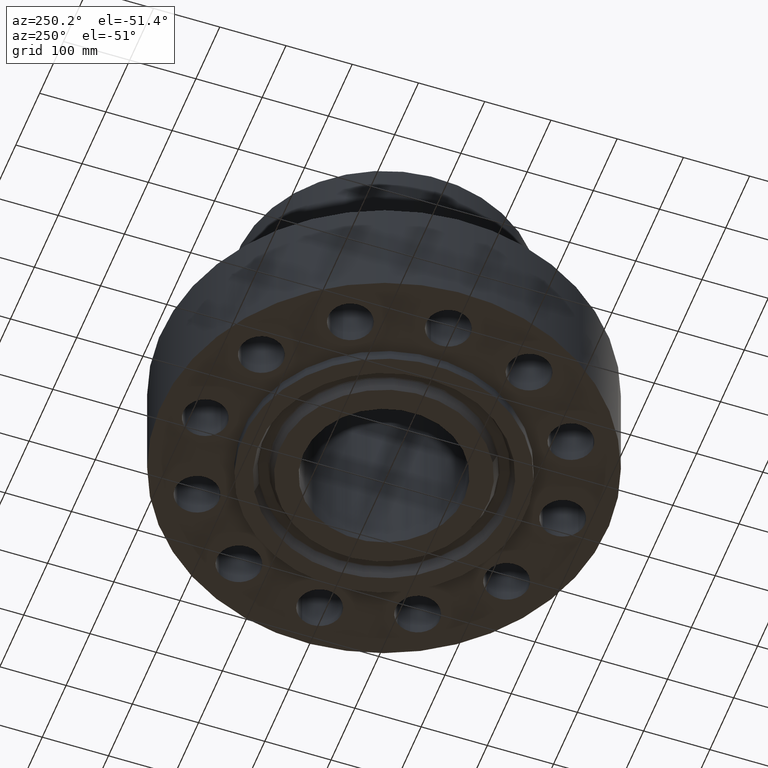
[diagram: clean part render]
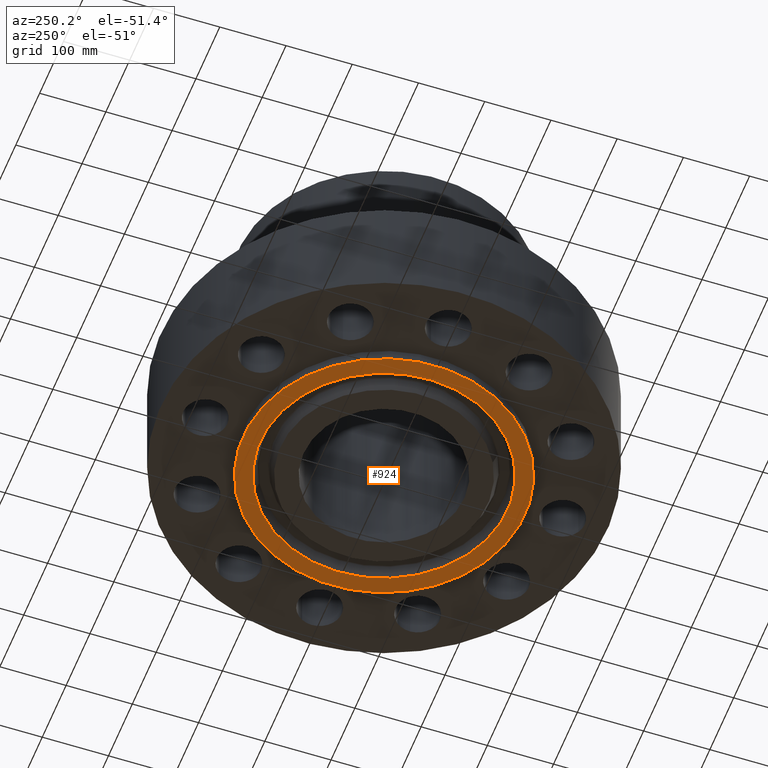
[diagram: same view with one face highlighted and labeled with its STEP entity id]
A machine part, auxiliary view. The second image highlights one B-rep face of the part: STEP entity #924.
In plain terms, the highlighted planar face has unit normal (0, 0, -1).
Its self-contained STEP definition (entity closure, byte-faithful):
#682=AXIS2_PLACEMENT_3D('Plane Axis2P3D',#679,#680,#681) ;
#873=AXIS2_PLACEMENT_3D('Circle Axis2P3D',#871,#872,$) ;
#892=AXIS2_PLACEMENT_3D('Circle Axis2P3D',#890,#891,$) ;
#904=AXIS2_PLACEMENT_3D('Circle Axis2P3D',#902,#903,$) ;
#913=AXIS2_PLACEMENT_3D('Circle Axis2P3D',#911,#912,$) ;
#679=CARTESIAN_POINT('Axis2P3D Location',(0.,6.15600000002,-0.688000000003)) ;
#868=CARTESIAN_POINT('Vertex',(-3.52090115552,-6.44496633455,-0.688000000003)) ;
#871=CARTESIAN_POINT('Axis2P3D Location',(0.,0.,-0.688000000003)) ;
#875=CARTESIAN_POINT('Vertex',(3.52090115552,6.44496633455,-0.688000000003)) ;
#890=CARTESIAN_POINT('Axis2P3D Location',(0.,0.,-0.688000000003)) ;
#902=CARTESIAN_POINT('Axis2P3D Location',(0.,0.,-0.688000000003)) ;
#906=CARTESIAN_POINT('Vertex',(-4.01518888583,-7.34975395586,-0.688000000003)) ;
#908=CARTESIAN_POINT('Vertex',(4.01518888583,7.34975395586,-0.688000000003)) ;
#911=CARTESIAN_POINT('Axis2P3D Location',(0.,0.,-0.688000000003)) ;
#680=DIRECTION('Axis2P3D Direction',(0.,0.,-0.0393700787402)) ;
#681=DIRECTION('Axis2P3D XDirection',(0.0393700787402,0.,0.)) ;
#872=DIRECTION('Axis2P3D Direction',(0.,0.,-0.0393700787402)) ;
#891=DIRECTION('Axis2P3D Direction',(0.,0.,-0.0393700787402)) ;
#903=DIRECTION('Axis2P3D Direction',(0.,0.,-0.0393700787402)) ;
#912=DIRECTION('Axis2P3D Direction',(0.,0.,-0.0393700787402)) ;
#917=ORIENTED_EDGE('',*,*,#910,.T.) ;
#918=ORIENTED_EDGE('',*,*,#915,.T.) ;
#921=ORIENTED_EDGE('',*,*,#894,.F.) ;
#922=ORIENTED_EDGE('',*,*,#877,.F.) ;
#923=FACE_BOUND('',#920,.T.) ;
#924=ADVANCED_FACE('PartBody',(#919,#923),#683,.T.) ;
#874=CIRCLE('generated circle',#873,7.34400000003) ;
#893=CIRCLE('generated circle',#892,7.34400000003) ;
#905=CIRCLE('generated circle',#904,8.37500000003) ;
#914=CIRCLE('generated circle',#913,8.37500000003) ;
#877=EDGE_CURVE('',#869,#876,#874,.T.) ;
#894=EDGE_CURVE('',#876,#869,#893,.T.) ;
#910=EDGE_CURVE('',#907,#909,#905,.T.) ;
#915=EDGE_CURVE('',#909,#907,#914,.T.) ;
#916=EDGE_LOOP('',(#917,#918)) ;
#920=EDGE_LOOP('',(#921,#922)) ;
#919=FACE_OUTER_BOUND('',#916,.T.) ;
#683=PLANE('',#682) ;
#869=VERTEX_POINT('',#868) ;
#876=VERTEX_POINT('',#875) ;
#907=VERTEX_POINT('',#906) ;
#909=VERTEX_POINT('',#908) ;